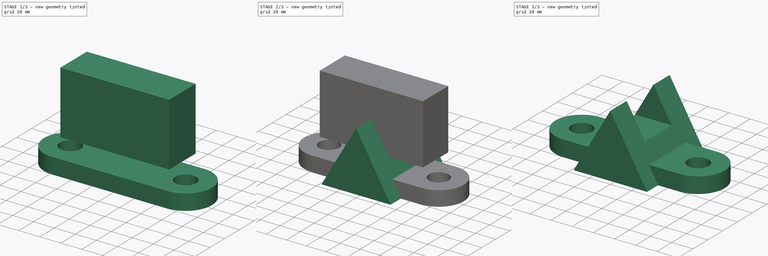
[diagram: build sequence overview — one tinted view per stage of 3, left to right]
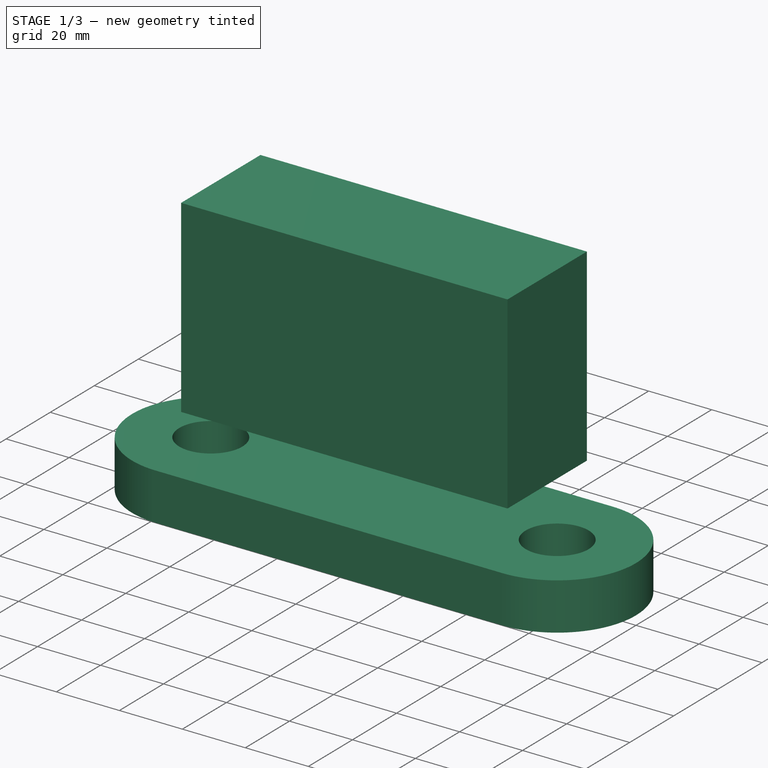
[diagram: stage 1 of 3 — iso view after this stage's code; geometry added in this stage tinted green]
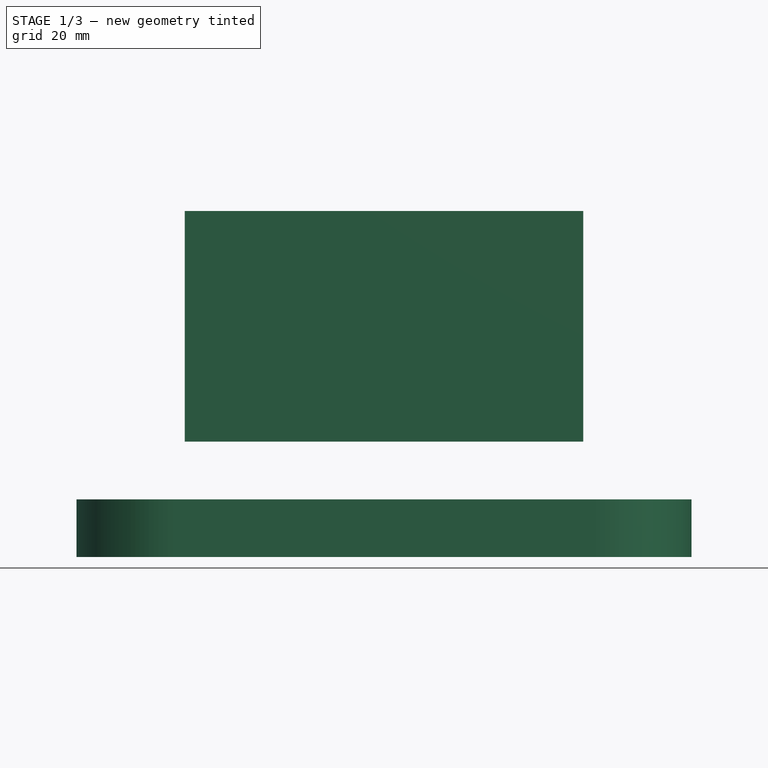
[diagram: stage 1 of 3 — front view after this stage's code; geometry added in this stage tinted green]
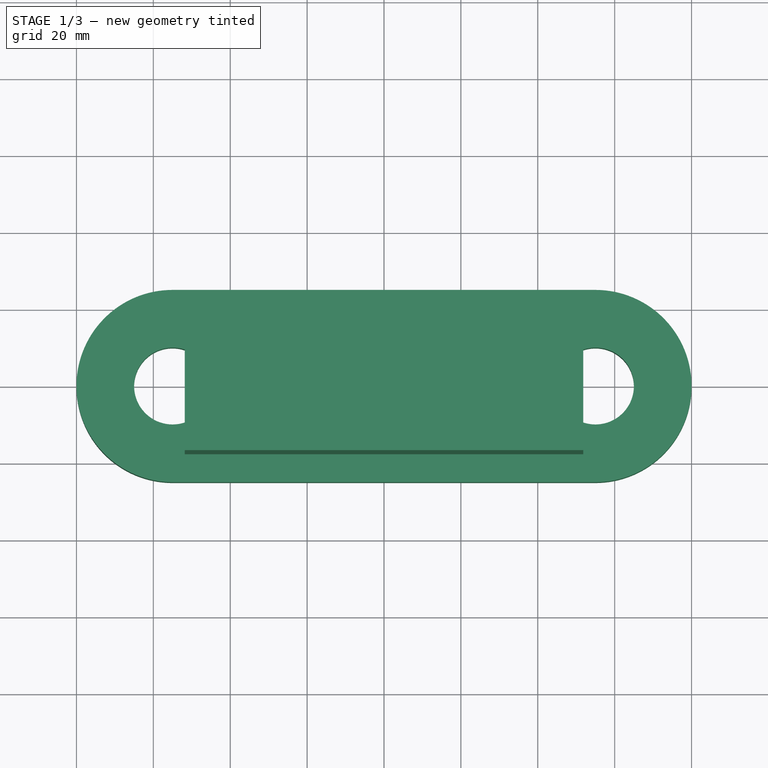
[diagram: stage 1 of 3 — top view after this stage's code; geometry added in this stage tinted green]
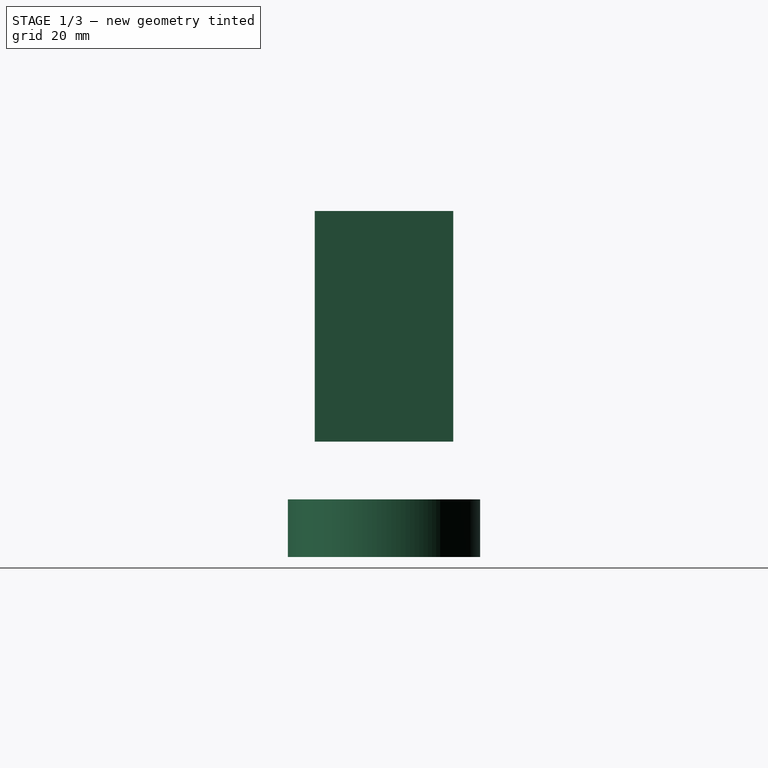
[diagram: stage 1 of 3 — right view after this stage's code; geometry added in this stage tinted green]
FCSTD DOCUMENT  (FreeCAD 0.16R)
Label: ejer4 final
License: All rights reserved
LicenseURL: http://en.wikipedia.org/wiki/All_rights_reserved
objects: Sketcher::SketchObject×3, PartDesign::Pad×3, Part::Cut×1, Part::MultiFuse×1, Part::Feature×1
note: 12 computed .brp shape members not serialized (recipe doc carries the construction recipe); baked Part::Feature solids carry a one-line shape summary decoded from their .brp

FEATURE [Sketcher::SketchObject] Sketch001
  Placement = pos=(0,0,30) rot=(0,0,1;1.5708rad)
  sketch-geometry (4):
    g0: LineSegment StartX=-18 StartY=51.8254 StartZ=0 EndX=18 EndY=51.8254 EndZ=0
    g1: LineSegment StartX=18 StartY=51.8254 StartZ=0 EndX=18 EndY=-51.8254 EndZ=0
    g2: LineSegment StartX=18 StartY=-51.8254 StartZ=0 EndX=-18 EndY=-51.8254 EndZ=0
    g3: LineSegment StartX=-18 StartY=-51.8254 StartZ=0 EndX=-18 EndY=51.8254 EndZ=0
  constraints (11):
    c: Coincident(g0,g1)
    c: Coincident(g1,g2)
    c: Coincident(g2,g3)
    c: Coincident(g3,g0)
    c: Horizontal(g0)
    c: Horizontal(g2)
    c: Vertical(g1)
    c: Vertical(g3)
    c: Symmetric(g1,g0,g-1)
    c: Symmetric(g0,g0,g-2)
    c: DistanceX(g0,g0) = 36
FEATURE [PartDesign::Pad] Pad001
  Length = 60
  Length2 = 100
  Placement = pos=(0,0,30) rot=(0,0,1;1.5708rad)
  Sketch = -> Sketch001
  Type = 0
FEATURE [Sketcher::SketchObject] Sketch002
  sketch-geometry (6):
    g0: Circle CenterX=-55 CenterY=0 CenterZ=0 NormalX=0 NormalY=0 NormalZ=1 Radius=10
    g1: Circle CenterX=55 CenterY=0 CenterZ=0 NormalX=0 NormalY=0 NormalZ=1 Radius=10
    g2: LineSegment StartX=-55 StartY=25 StartZ=0 EndX=55 EndY=25 EndZ=0
    g3: LineSegment StartX=-55 StartY=-25 StartZ=0 EndX=55 EndY=-25 EndZ=0
    g4: ArcOfCircle CenterX=-55 CenterY=0 CenterZ=0 NormalX=0 NormalY=0 NormalZ=1 Radius=25 StartAngle=1.5708 EndAngle=4.71239
    g5: ArcOfCircle CenterX=55 CenterY=0 CenterZ=0 NormalX=0 NormalY=0 NormalZ=1 Radius=25 StartAngle=4.71239 EndAngle=7.85398
  constraints (18):
    c: Radius(g0) = 10
    c: Equal(g0,g1)
    c: Coincident(g4,g2)
    c: Coincident(g4,g3)
    c: Coincident(g5,g2)
    c: Coincident(g5,g3)
    c: Tangent(g2,g4)
    c: Tangent(g3,g4)
    c: Tangent(g5,g2)
    c: Tangent(g5,g3)
    c: Horizontal(g3)
    c: Horizontal(g2)
    c: Coincident(g5,g1)
    c: Coincident(g0,g4)
    c: PointOnObject(g0,g-1)
    c: Symmetric(g1,g0,g-2)
    c: Radius(g4) = 25
    c: DistanceX(g0,g1) = 110
FEATURE [PartDesign::Pad] Pad002
  Length = 15
  Length2 = 100
  Sketch = -> Sketch002
  Type = 0
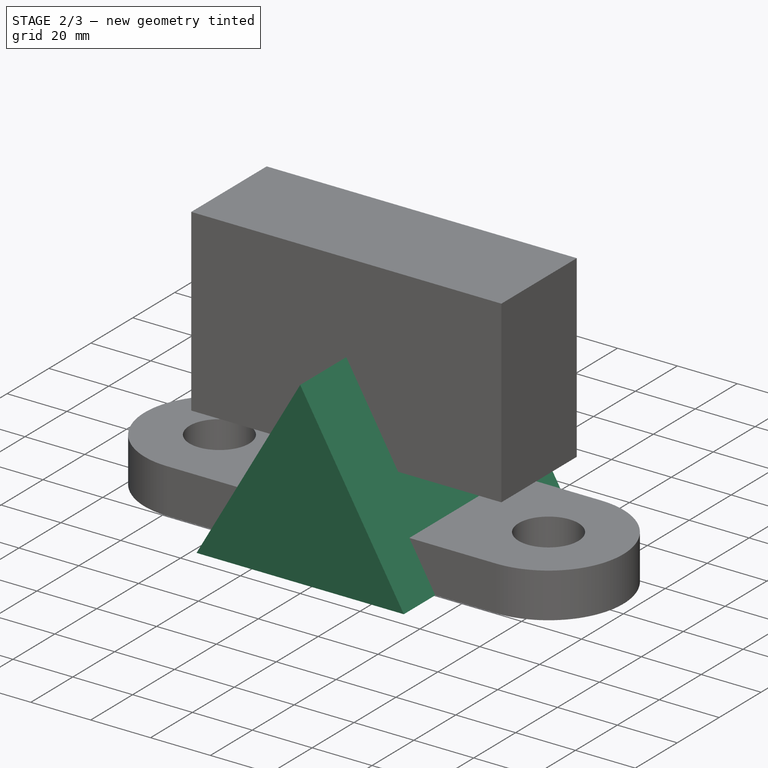
[diagram: stage 2 of 3 — iso view after this stage's code; geometry added in this stage tinted green]
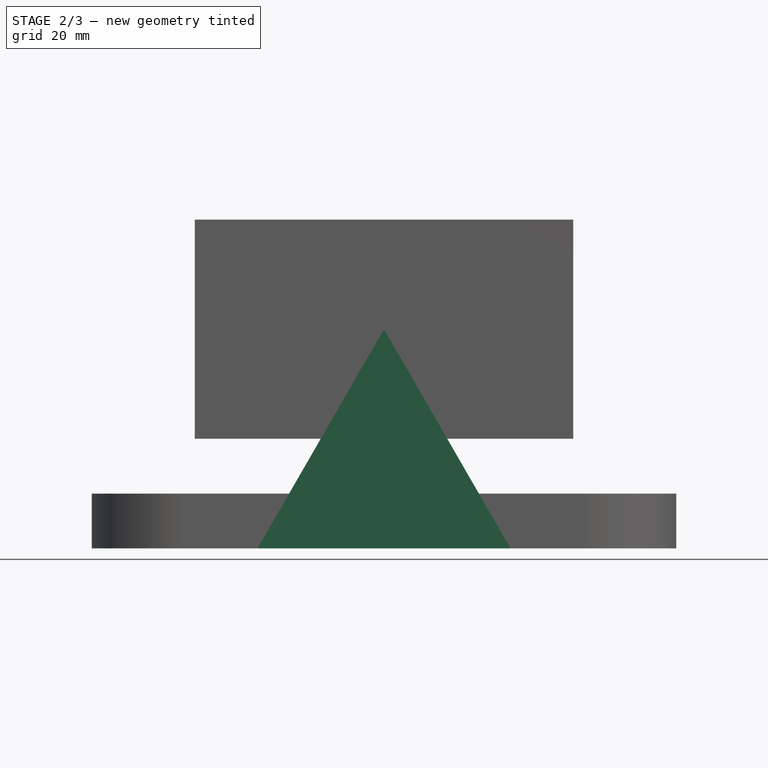
[diagram: stage 2 of 3 — front view after this stage's code; geometry added in this stage tinted green]
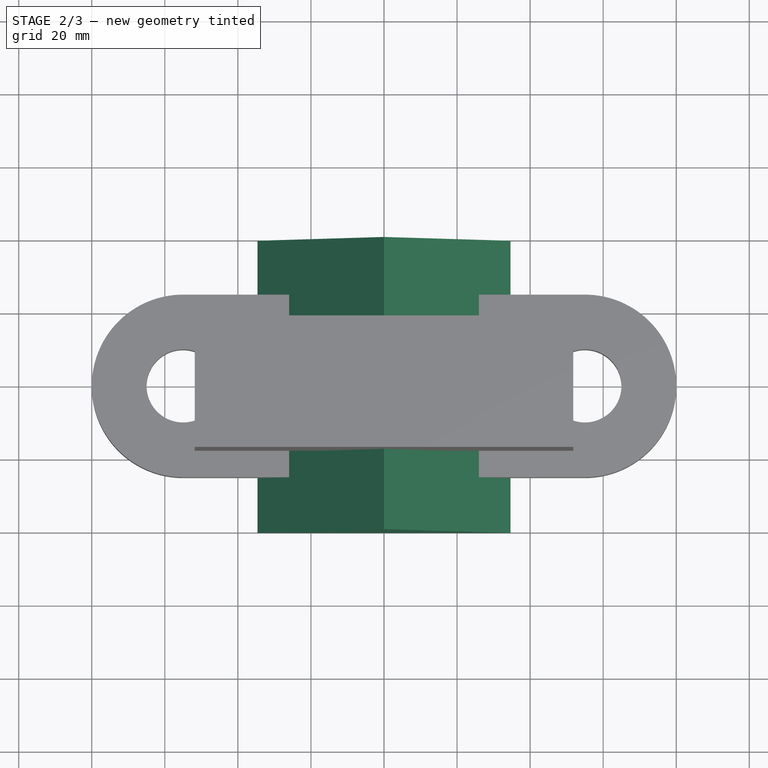
[diagram: stage 2 of 3 — top view after this stage's code; geometry added in this stage tinted green]
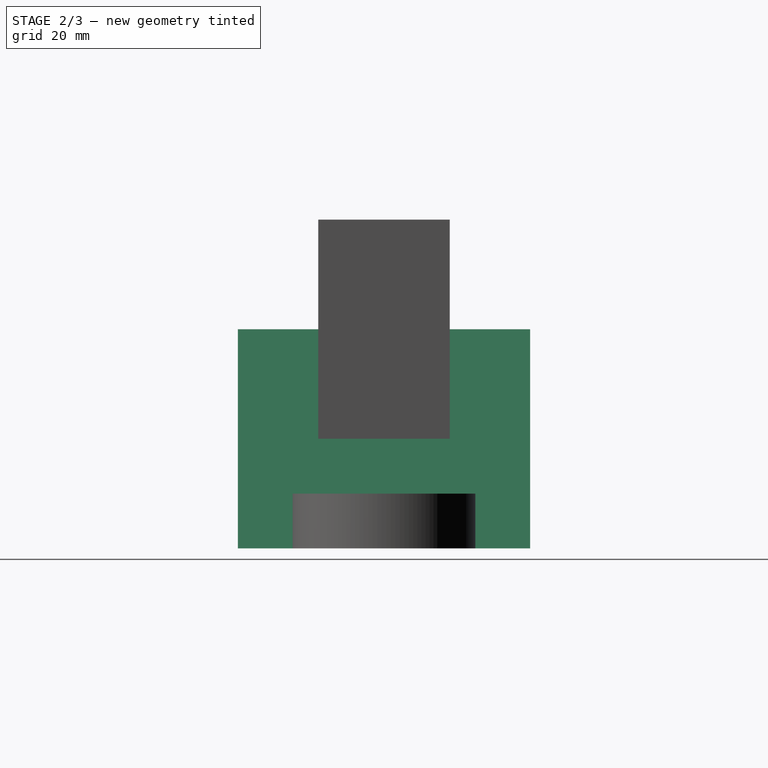
[diagram: stage 2 of 3 — right view after this stage's code; geometry added in this stage tinted green]
FEATURE [Sketcher::SketchObject] Sketch
  Placement = pos=(0,0,0) rot=(-1,0,0;4.71239rad)
  sketch-geometry (3):
    g0: LineSegment StartX=0 StartY=60 StartZ=0 EndX=-34.641 EndY=0 EndZ=0
    g1: LineSegment StartX=-34.641 StartY=0 StartZ=0 EndX=34.641 EndY=0 EndZ=0
    g2: LineSegment StartX=34.641 StartY=0 StartZ=0 EndX=0 EndY=60 EndZ=0
  constraints (9):
    c: Coincident(g1,g2)
    c: Coincident(g0,g2)
    c: Coincident(g0,g1)
    c: PointOnObject(g1,g-1)
    c: DistanceY(g-1,g0) = 60
    c: Horizontal(g1)
    c: Angle(g0,g2) = 1.0472
    c: Symmetric(g1,g0,g-2)
    c: PointOnObject(g0,g-2)
FEATURE [PartDesign::Pad] Pad
  Length = 80
  Length2 = 100
  Midplane = true
  Placement = pos=(0,0,0) rot=(-1,0,0;4.71239rad)
  Sketch = -> Sketch
  Type = 0
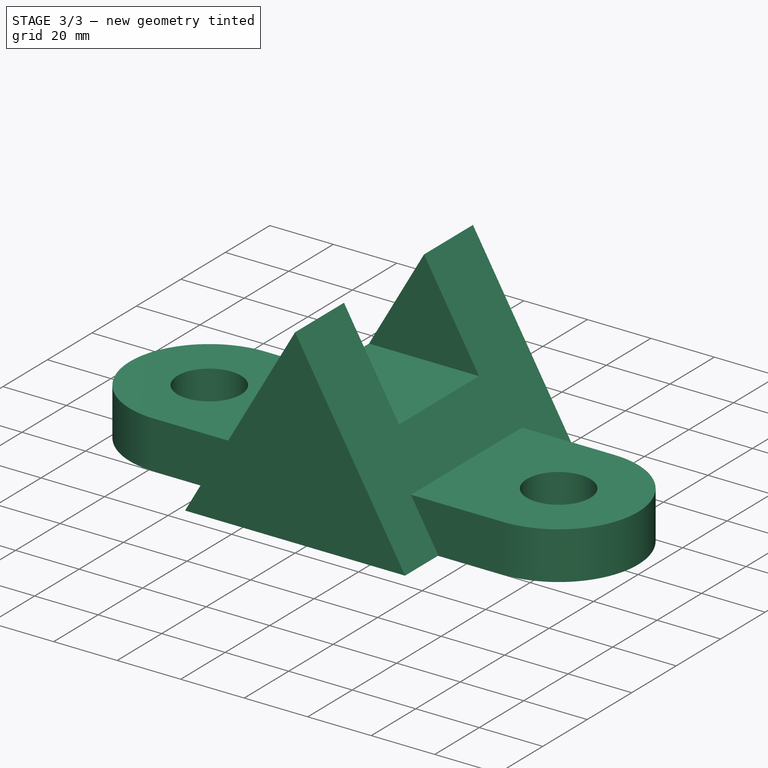
[diagram: stage 3 of 3 — iso view after this stage's code; geometry added in this stage tinted green]
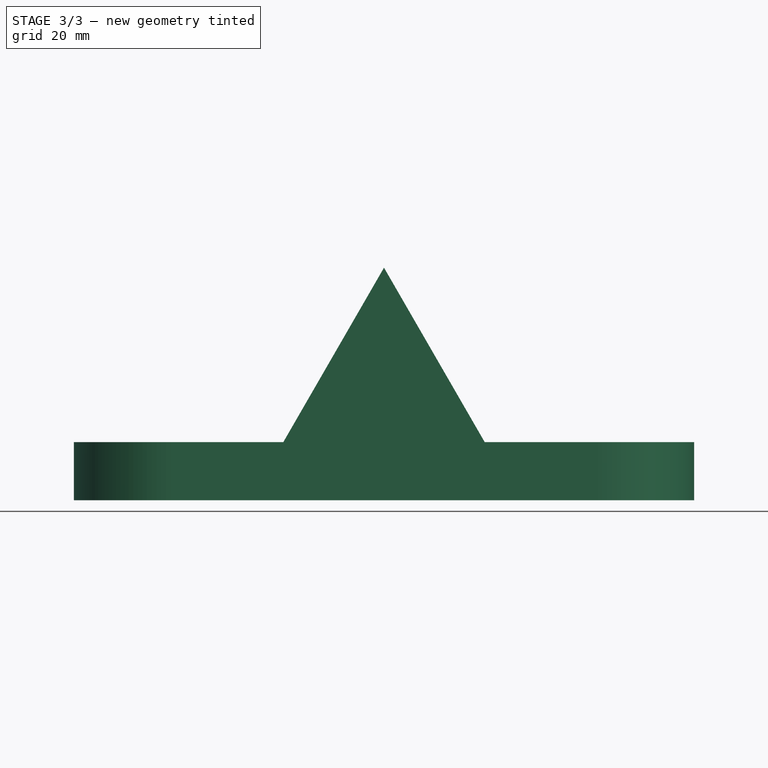
[diagram: stage 3 of 3 — front view after this stage's code; geometry added in this stage tinted green]
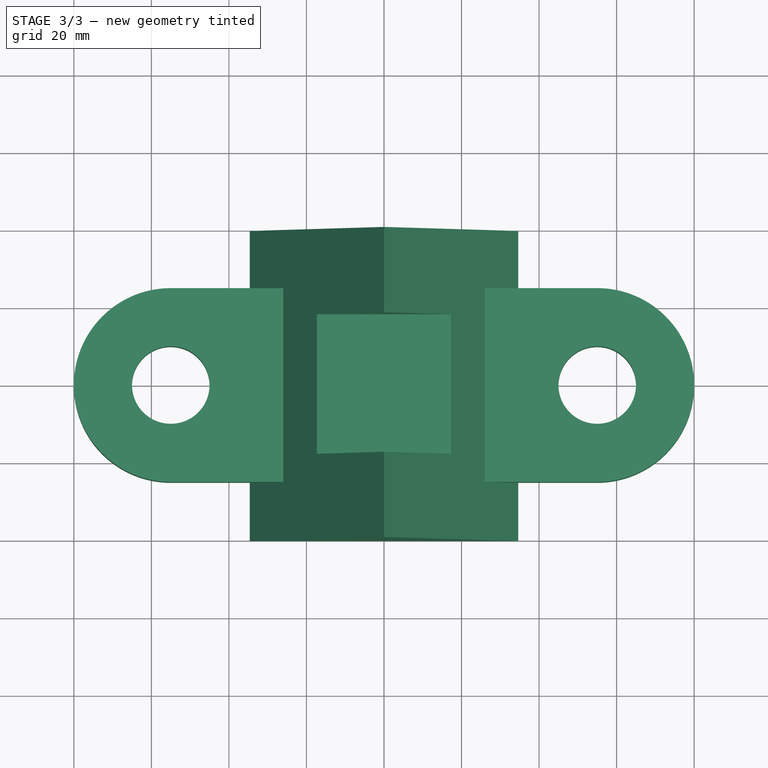
[diagram: stage 3 of 3 — top view after this stage's code; geometry added in this stage tinted green]
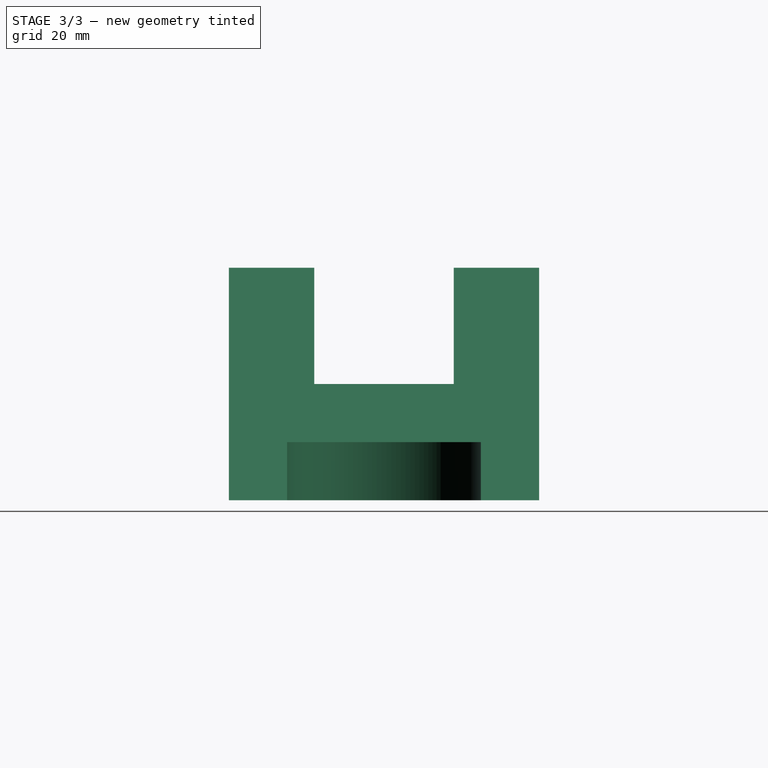
[diagram: stage 3 of 3 — right view after this stage's code; geometry added in this stage tinted green]
FEATURE [Part::Cut] Cut
  Base = -> Pad
  Tool = -> Pad001
FEATURE [Part::MultiFuse] Fusion
  Shapes = -> [Cut,Pad002]
FEATURE [Part::Feature] Fusion001
  shape: bbox 160 x 80 x 60 mm, 18 faces (baked)
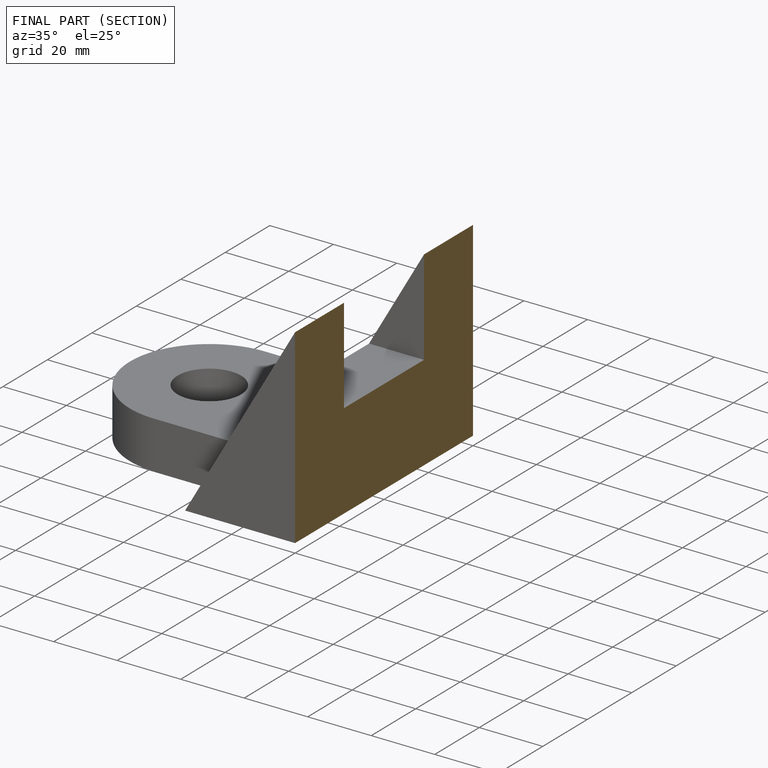
[diagram: finished part — half-section view (interior)]
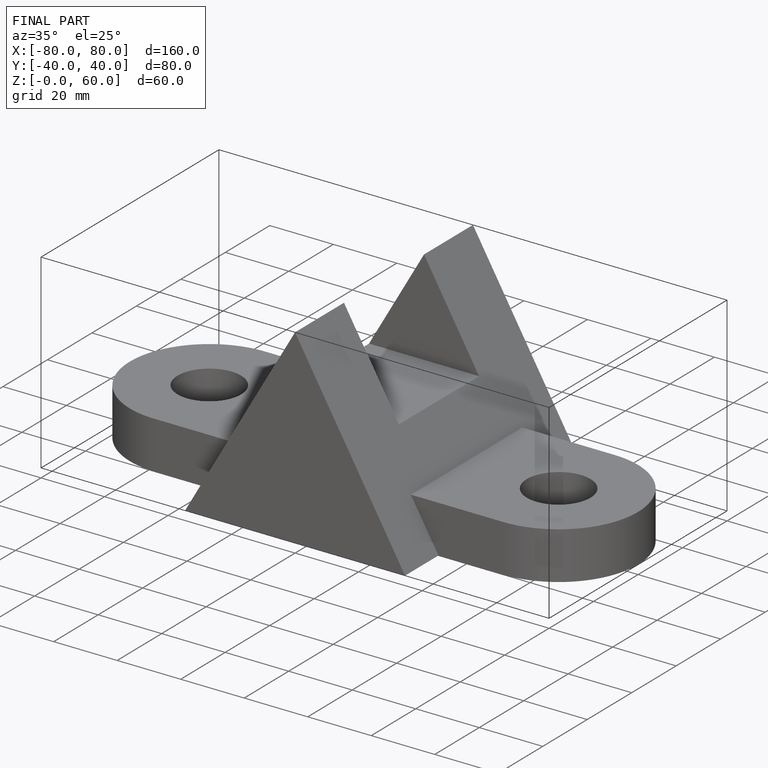
[diagram: finished part — iso view with bounding-box wireframe]
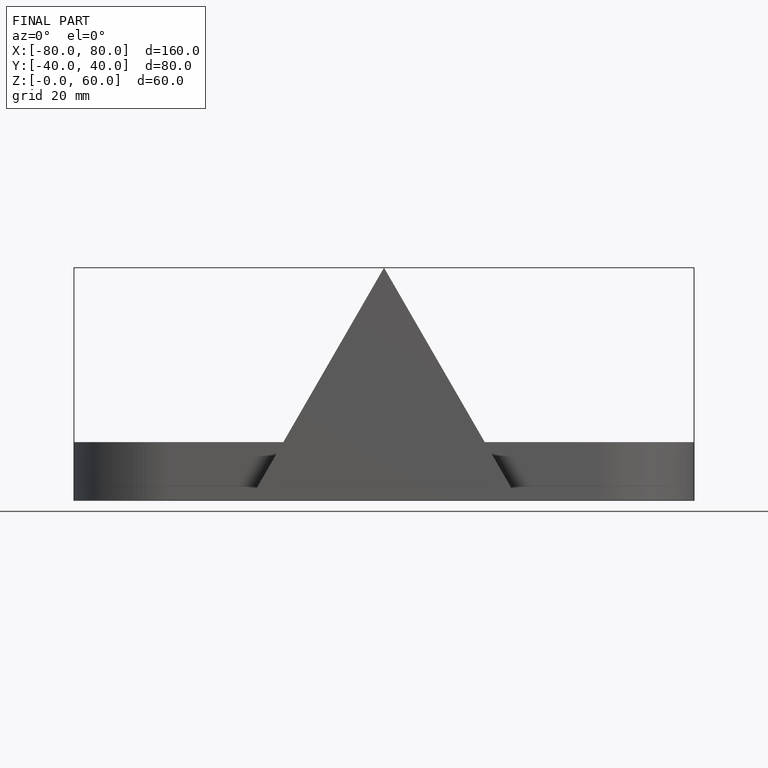
[diagram: finished part — front view with bounding-box wireframe]
